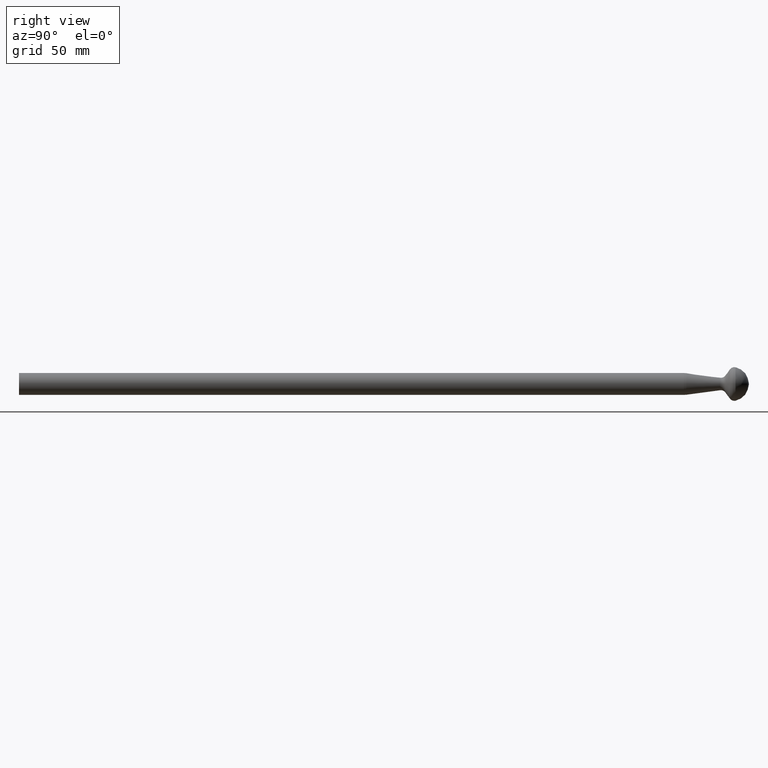
[diagram: clean part render]
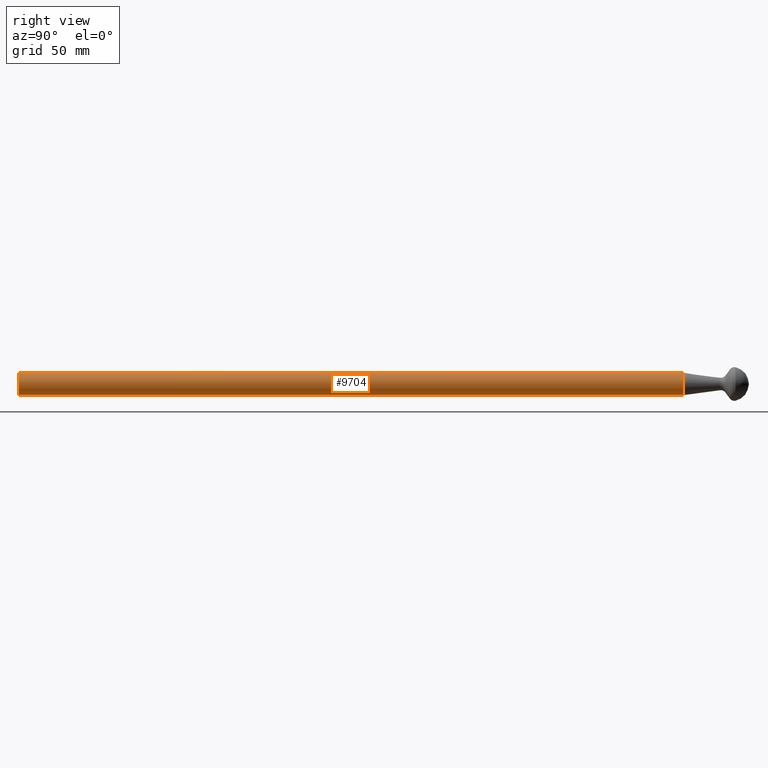
[diagram: same view with one face highlighted and labeled with its STEP entity id]
A machine part, right view. The second image highlights one B-rep face of the part: STEP entity #9704.
In plain terms, the highlighted cylindrical surface (bore or boss wall) has radius 6 mm, axis along (-0, -1, -0).
Its self-contained STEP definition (entity closure, byte-faithful):
#721 = CARTESIAN_POINT ( 'NONE',  ( 0.000000000000000000, 365.0000000000000000, 0.000000000000000000 ) ) ;
#736 = EDGE_LOOP ( 'NONE', ( #5320 ) ) ;
#2180 = DIRECTION ( 'NONE',  ( 0.000000000000000000, 1.000000000000000000, 0.000000000000000000 ) ) ;
#3296 = DIRECTION ( 'NONE',  ( 0.000000000000000000, 0.000000000000000000, -1.000000000000000000 ) ) ;
#3390 = EDGE_LOOP ( 'NONE', ( #9358 ) ) ;
#3683 = CARTESIAN_POINT ( 'NONE',  ( 0.000000000000000000, 0.000000000000000000, 6.000000000000000888 ) ) ;
#3869 = EDGE_CURVE ( 'NONE', #5001, #5001, #5578, .T. ) ;
#4015 = CIRCLE ( 'NONE', #9305, 6.000000000000000888 ) ;
#4079 = DIRECTION ( 'NONE',  ( -0.000000000000000000, -1.000000000000000000, -0.000000000000000000 ) ) ;
#4642 = CARTESIAN_POINT ( 'NONE',  ( 0.000000000000000000, 364.3343057522072854, 0.000000000000000000 ) ) ;
#4736 = CARTESIAN_POINT ( 'NONE',  ( 0.000000000000000000, 0.000000000000000000, 0.000000000000000000 ) ) ;
#4786 = AXIS2_PLACEMENT_3D ( 'NONE', #4736, #2180, #6824 ) ;
#5001 = VERTEX_POINT ( 'NONE', #3683 ) ;
#5320 = ORIENTED_EDGE ( 'NONE', *, *, #3869, .T. ) ;
#5578 = CIRCLE ( 'NONE', #4786, 6.000000000000000888 ) ;
#6824 = DIRECTION ( 'NONE',  ( 0.000000000000000000, 0.000000000000000000, 1.000000000000000000 ) ) ;
#7123 = FACE_OUTER_BOUND ( 'NONE', #736, .T. ) ;
#7260 = CYLINDRICAL_SURFACE ( 'NONE', #10360, 6.000000000000000888 ) ;
#7893 = DIRECTION ( 'NONE',  ( 0.000000000000000000, 0.000000000000000000, -1.000000000000000000 ) ) ;
#8782 = EDGE_CURVE ( 'NONE', #10089, #10089, #4015, .T. ) ;
#9305 = AXIS2_PLACEMENT_3D ( 'NONE', #4642, #10467, #7893 ) ;
#9327 = FACE_OUTER_BOUND ( 'NONE', #3390, .T. ) ;
#9358 = ORIENTED_EDGE ( 'NONE', *, *, #8782, .T. ) ;
#9554 = CARTESIAN_POINT ( 'NONE',  ( 0.000000000000000000, 364.3343057522072854, -6.000000000000000888 ) ) ;
#9704 = ADVANCED_FACE ( 'NONE', ( #9327, #7123 ), #7260, .T. ) ;
#10089 = VERTEX_POINT ( 'NONE', #9554 ) ;
#10360 = AXIS2_PLACEMENT_3D ( 'NONE', #721, #4079, #3296 ) ;
#10467 = DIRECTION ( 'NONE',  ( -0.000000000000000000, -1.000000000000000000, -0.000000000000000000 ) ) ;